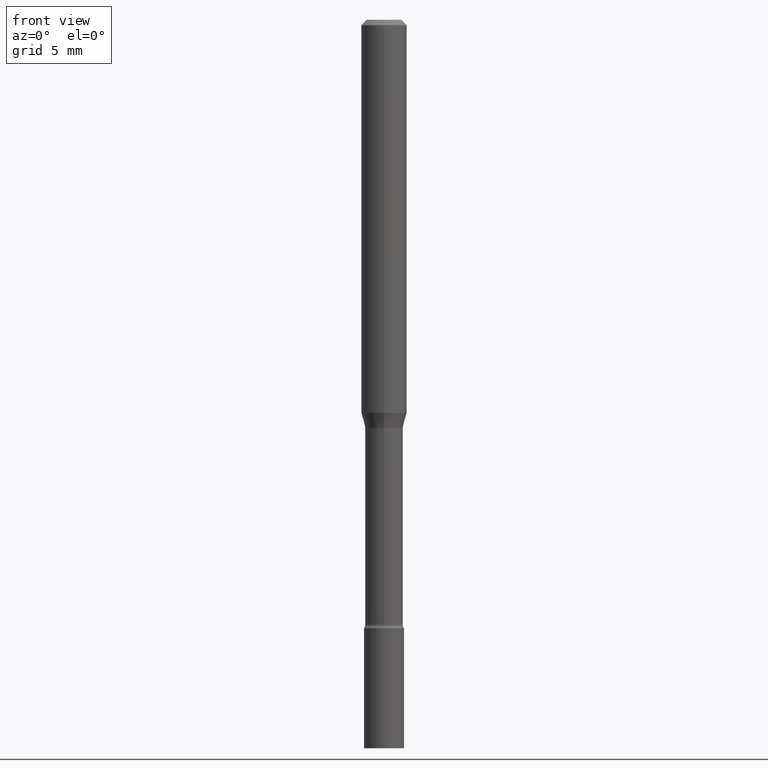
[diagram: clean part render]
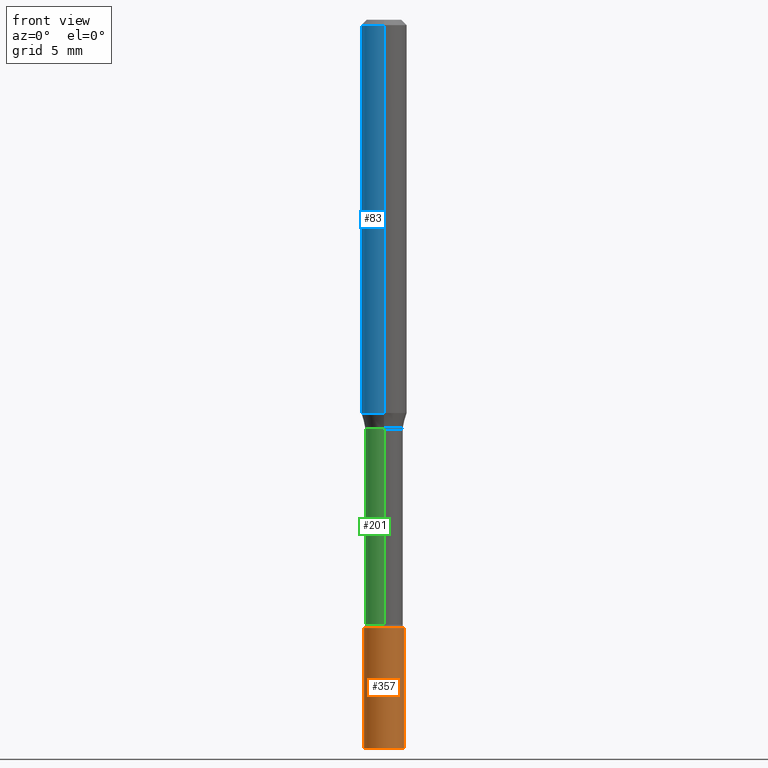
[diagram: same view with three faces highlighted in distinct colors, each labeled with its STEP entity id]
A machine part, front view with three faces highlighted in distinct colors.
Their STEP definitions:

[orange] entity #357 — the highlighted cylindrical surface (edge-blend (fillet) strip) has radius 1.397 mm, axis along (-0, 0, 1).
#22 = VECTOR ( 'NONE', #285, 39.37007874015748143 ) ;
#31 = EDGE_CURVE ( 'NONE', #158, #466, #162, .T. ) ;
#32 = ORIENTED_EDGE ( 'NONE', *, *, #505, .T. ) ;
#41 = ORIENTED_EDGE ( 'NONE', *, *, #455, .F. ) ;
#52 = CARTESIAN_POINT ( 'NONE',  ( 0.05500000000000000028, -6.214836783140797252E-15, -1.669999999999999929 ) ) ;
#54 = DIRECTION ( 'NONE',  ( -2.445468806185136597E-29, 3.491481338843145583E-15, 1.000000000000000000 ) ) ;
#56 = DIRECTION ( 'NONE',  ( 1.000000000000000000, -6.982962677686262766E-15, 0.000000000000000000 ) ) ;
#64 = CARTESIAN_POINT ( 'NONE',  ( 0.05500000000000000028, -3.840629472727446888E-16, 2.681897226687764826E-30 ) ) ;
#101 = CYLINDRICAL_SURFACE ( 'NONE', #506, 0.05500000000000000028 ) ;
#118 = CARTESIAN_POINT ( 'NONE',  ( -0.05500000000000000028, 3.907985046680551042E-16, -2.705414299640198362E-30 ) ) ;
#137 = CARTESIAN_POINT ( 'NONE',  ( -0.05500000000000000028, -6.016069752109117450E-15, -1.669999999999999929 ) ) ;
#142 = AXIS2_PLACEMENT_3D ( 'NONE', #389, #354, #498 ) ;
#158 = VERTEX_POINT ( 'NONE', #385 ) ;
#162 = LINE ( 'NONE', #118, #22 ) ;
#192 = VECTOR ( 'NONE', #460, 39.37007874015748143 ) ;
#198 = EDGE_CURVE ( 'NONE', #158, #367, #412, .T. ) ;
#200 = AXIS2_PLACEMENT_3D ( 'NONE', #300, #231, #56 ) ;
#231 = DIRECTION ( 'NONE',  ( -2.445468806185136597E-29, 3.491481338843145583E-15, 1.000000000000000000 ) ) ;
#235 = CIRCLE ( 'NONE', #200, 0.05500000000000000028 ) ;
#237 = DIRECTION ( 'NONE',  ( 1.000000000000000000, -6.982962677686266711E-15, 4.876176775795935793E-29 ) ) ;
#250 = VERTEX_POINT ( 'NONE', #52 ) ;
#268 = LINE ( 'NONE', #64, #192 ) ;
#285 = DIRECTION ( 'NONE',  ( -2.445468806185136877E-29, 3.491481338843145188E-15, 1.000000000000000000 ) ) ;
#300 = CARTESIAN_POINT ( 'NONE',  ( 4.083932906329177803E-29, -5.830773835868053056E-15, -1.669999999999999929 ) ) ;
#354 = DIRECTION ( 'NONE',  ( -2.445468806185136597E-29, 3.491481338843145583E-15, 1.000000000000000000 ) ) ;
#357 = ADVANCED_FACE ( 'NONE', ( #422 ), #101, .T. ) ;
#367 = VERTEX_POINT ( 'NONE', #383 ) ;
#383 = CARTESIAN_POINT ( 'NONE',  ( 0.05500000000000000028, -7.367025624959035361E-15, -2.000000000000000000 ) ) ;
#385 = CARTESIAN_POINT ( 'NONE',  ( -0.05500000000000000028, -6.016069752109117450E-15, -2.000000000000000000 ) ) ;
#389 = CARTESIAN_POINT ( 'NONE',  ( 4.890937612370273194E-29, -6.982962677686291165E-15, -2.000000000000000000 ) ) ;
#411 = ORIENTED_EDGE ( 'NONE', *, *, #31, .F. ) ;
#412 = CIRCLE ( 'NONE', #142, 0.05500000000000000028 ) ;
#422 = FACE_OUTER_BOUND ( 'NONE', #501, .T. ) ;
#428 = CARTESIAN_POINT ( 'NONE',  ( 0.000000000000000000, 0.000000000000000000, 0.000000000000000000 ) ) ;
#455 = EDGE_CURVE ( 'NONE', #466, #250, #235, .T. ) ;
#460 = DIRECTION ( 'NONE',  ( -2.445468806185136877E-29, 3.491481338843145188E-15, 1.000000000000000000 ) ) ;
#466 = VERTEX_POINT ( 'NONE', #137 ) ;
#481 = ORIENTED_EDGE ( 'NONE', *, *, #198, .T. ) ;
#498 = DIRECTION ( 'NONE',  ( 1.000000000000000000, -6.982962677686262766E-15, 0.000000000000000000 ) ) ;
#501 = EDGE_LOOP ( 'NONE', ( #411, #481, #32, #41 ) ) ;
#505 = EDGE_CURVE ( 'NONE', #367, #250, #268, .T. ) ;
#506 = AXIS2_PLACEMENT_3D ( 'NONE', #428, #54, #237 ) ;

[blue] entity #83 — the highlighted cylindrical surface (edge-blend (fillet) strip) has radius 1.5875 mm, axis along (-0, 0, 1).
#12 = CARTESIAN_POINT ( 'NONE',  ( -4.364351673553912750E-16, -0.06250000000000005551, -0.01499999999999981209 ) ) ;
#27 = DIRECTION ( 'NONE',  ( -6.982962677686265922E-15, -1.000000000000000000, 3.483106191921935554E-15 ) ) ;
#45 = AXIS2_PLACEMENT_3D ( 'NONE', #58, #395, #233 ) ;
#50 = EDGE_CURVE ( 'NONE', #363, #401, #450, .T. ) ;
#58 = CARTESIAN_POINT ( 'NONE',  ( 0.000000000000000000, 0.000000000000000000, 0.000000000000000000 ) ) ;
#83 = ADVANCED_FACE ( 'NONE', ( #180 ), #224, .T. ) ;
#97 = AXIS2_PLACEMENT_3D ( 'NONE', #408, #212, #218 ) ;
#116 = VERTEX_POINT ( 'NONE', #480 ) ;
#119 = ORIENTED_EDGE ( 'NONE', *, *, #249, .T. ) ;
#130 = VECTOR ( 'NONE', #378, 39.37007874015748143 ) ;
#139 = CARTESIAN_POINT ( 'NONE',  ( -4.364351673553652919E-16, -0.06250000000000377476, -1.079693851278255901 ) ) ;
#169 = CARTESIAN_POINT ( 'NONE',  ( 4.440892098500625669E-16, 0.06250000000000000000, -2.182214899580743374E-16 ) ) ;
#180 = FACE_OUTER_BOUND ( 'NONE', #260, .T. ) ;
#181 = CARTESIAN_POINT ( 'NONE',  ( -4.364351673553916201E-16, -0.06250000000000000000, 2.182214899580743374E-16 ) ) ;
#185 = LINE ( 'NONE', #181, #130 ) ;
#199 = CIRCLE ( 'NONE', #390, 0.06250000000000000000 ) ;
#212 = DIRECTION ( 'NONE',  ( -2.445425162328998423E-29, 3.491543839329189399E-15, 1.000000000000000000 ) ) ;
#218 = DIRECTION ( 'NONE',  ( -6.982962677686265922E-15, -1.000000000000000000, 4.370956789862821150E-15 ) ) ;
#224 = CYLINDRICAL_SURFACE ( 'NONE', #45, 0.06250000000000000000 ) ;
#233 = DIRECTION ( 'NONE',  ( -6.982962677686265922E-15, -1.000000000000000000, 3.491543839329189399E-15 ) ) ;
#249 = EDGE_CURVE ( 'NONE', #401, #380, #185, .T. ) ;
#252 = ORIENTED_EDGE ( 'NONE', *, *, #430, .F. ) ;
#258 = EDGE_CURVE ( 'NONE', #363, #116, #381, .T. ) ;
#260 = EDGE_LOOP ( 'NONE', ( #329, #416, #119, #252 ) ) ;
#302 = CARTESIAN_POINT ( 'NONE',  ( 4.440892098500888458E-16, 0.06249999999999621830, -1.079693851278256345 ) ) ;
#313 = VECTOR ( 'NONE', #331, 39.37007874015748143 ) ;
#329 = ORIENTED_EDGE ( 'NONE', *, *, #258, .F. ) ;
#331 = DIRECTION ( 'NONE',  ( -2.445425162328998703E-29, 3.491543839329189794E-15, 1.000000000000000000 ) ) ;
#363 = VERTEX_POINT ( 'NONE', #302 ) ;
#378 = DIRECTION ( 'NONE',  ( -2.445425162328998703E-29, 3.491543839329189794E-15, 1.000000000000000000 ) ) ;
#380 = VERTEX_POINT ( 'NONE', #12 ) ;
#381 = LINE ( 'NONE', #169, #313 ) ;
#390 = AXIS2_PLACEMENT_3D ( 'NONE', #499, #398, #27 ) ;
#395 = DIRECTION ( 'NONE',  ( -2.445425162328998423E-29, 3.491543839329189399E-15, 1.000000000000000000 ) ) ;
#398 = DIRECTION ( 'NONE',  ( -2.445425162328998423E-29, 3.491543839329189399E-15, 1.000000000000000000 ) ) ;
#401 = VERTEX_POINT ( 'NONE', #139 ) ;
#408 = CARTESIAN_POINT ( 'NONE',  ( 2.640310511527751488E-29, -3.769798414792201545E-15, -1.079693851278256123 ) ) ;
#416 = ORIENTED_EDGE ( 'NONE', *, *, #50, .T. ) ;
#430 = EDGE_CURVE ( 'NONE', #116, #380, #199, .T. ) ;
#450 = CIRCLE ( 'NONE', #97, 0.06250000000000000000 ) ;
#480 = CARTESIAN_POINT ( 'NONE',  ( 4.440892098500891416E-16, 0.06249999999999995143, -0.01500000000000024751 ) ) ;
#499 = CARTESIAN_POINT ( 'NONE',  ( 3.668137743493505096E-31, -5.237315758993794502E-17, -0.01500000000000003067 ) ) ;

[green] entity #201 — the highlighted cylindrical surface (edge-blend (fillet) strip) has radius 1.3132 mm, axis along (-0, 0, 1).
#5 = DIRECTION ( 'NONE',  ( -2.445425162328998423E-29, 3.491543839329189399E-15, 1.000000000000000000 ) ) ;
#6 = ORIENTED_EDGE ( 'NONE', *, *, #30, .T. ) ;
#7 = CIRCLE ( 'NONE', #132, 0.05170000000000000984 ) ;
#30 = EDGE_CURVE ( 'NONE', #473, #125, #7, .T. ) ;
#66 = DIRECTION ( 'NONE',  ( -2.445425162328998423E-29, 3.491543839329189399E-15, 1.000000000000000000 ) ) ;
#70 = CARTESIAN_POINT ( 'NONE',  ( -3.610191704363799542E-16, -0.05170000000000000984, 1.805128164933191265E-16 ) ) ;
#92 = DIRECTION ( 'NONE',  ( -6.982962677686264344E-15, -1.000000000000000000, 5.284038672464724914E-15 ) ) ;
#109 = CYLINDRICAL_SURFACE ( 'NONE', #340, 0.05170000000000000984 ) ;
#111 = VERTEX_POINT ( 'NONE', #520 ) ;
#123 = CARTESIAN_POINT ( 'NONE',  ( 4.060905566549507084E-29, -5.798104162582414395E-15, -1.660613307291702645 ) ) ;
#125 = VERTEX_POINT ( 'NONE', #291 ) ;
#126 = ORIENTED_EDGE ( 'NONE', *, *, #317, .F. ) ;
#132 = AXIS2_PLACEMENT_3D ( 'NONE', #123, #5, #92 ) ;
#144 = DIRECTION ( 'NONE',  ( -2.445425162328998423E-29, 3.491543839329189399E-15, 1.000000000000000000 ) ) ;
#161 = CIRCLE ( 'NONE', #406, 0.05170000000000000984 ) ;
#191 = CARTESIAN_POINT ( 'NONE',  ( 0.000000000000000000, 0.000000000000000000, 0.000000000000000000 ) ) ;
#201 = ADVANCED_FACE ( 'NONE', ( #491 ), #109, .T. ) ;
#203 = VECTOR ( 'NONE', #446, 39.37007874015748143 ) ;
#239 = DIRECTION ( 'NONE',  ( -6.982962677686264344E-15, -1.000000000000000000, 2.642019336232362457E-15 ) ) ;
#253 = VERTEX_POINT ( 'NONE', #290 ) ;
#272 = LINE ( 'NONE', #70, #467 ) ;
#290 = CARTESIAN_POINT ( 'NONE',  ( 3.673505943880124923E-16, 0.05169999999999608936, -1.121974787463811074 ) ) ;
#291 = CARTESIAN_POINT ( 'NONE',  ( -3.610191704363393772E-16, -0.05170000000000580381, -1.660613307291702423 ) ) ;
#304 = DIRECTION ( 'NONE',  ( -6.982962677686264344E-15, -1.000000000000000000, 3.491543839329189399E-15 ) ) ;
#308 = CARTESIAN_POINT ( 'NONE',  ( 2.743705376762733121E-29, -3.917424157051945251E-15, -1.121974787463810852 ) ) ;
#317 = EDGE_CURVE ( 'NONE', #473, #253, #327, .T. ) ;
#318 = DIRECTION ( 'NONE',  ( -2.445425162328998703E-29, 3.491543839329189794E-15, 1.000000000000000000 ) ) ;
#320 = ORIENTED_EDGE ( 'NONE', *, *, #425, .F. ) ;
#327 = LINE ( 'NONE', #474, #203 ) ;
#340 = AXIS2_PLACEMENT_3D ( 'NONE', #191, #144, #304 ) ;
#361 = EDGE_LOOP ( 'NONE', ( #126, #6, #508, #320 ) ) ;
#406 = AXIS2_PLACEMENT_3D ( 'NONE', #308, #66, #239 ) ;
#407 = EDGE_CURVE ( 'NONE', #125, #111, #272, .T. ) ;
#425 = EDGE_CURVE ( 'NONE', #253, #111, #161, .T. ) ;
#446 = DIRECTION ( 'NONE',  ( -2.445425162328998703E-29, 3.491543839329189794E-15, 1.000000000000000000 ) ) ;
#467 = VECTOR ( 'NONE', #318, 39.37007874015748143 ) ;
#473 = VERTEX_POINT ( 'NONE', #487 ) ;
#474 = CARTESIAN_POINT ( 'NONE',  ( 3.673505943879717674E-16, 0.05170000000000000984, -1.805128164933191265E-16 ) ) ;
#487 = CARTESIAN_POINT ( 'NONE',  ( 3.790745495280543333E-16, 0.05169999999999420892, -1.660613307291702867 ) ) ;
#491 = FACE_OUTER_BOUND ( 'NONE', #361, .T. ) ;
#508 = ORIENTED_EDGE ( 'NONE', *, *, #407, .T. ) ;
#520 = CARTESIAN_POINT ( 'NONE',  ( -3.610191704363525413E-16, -0.05170000000000392337, -1.121974787463810630 ) ) ;